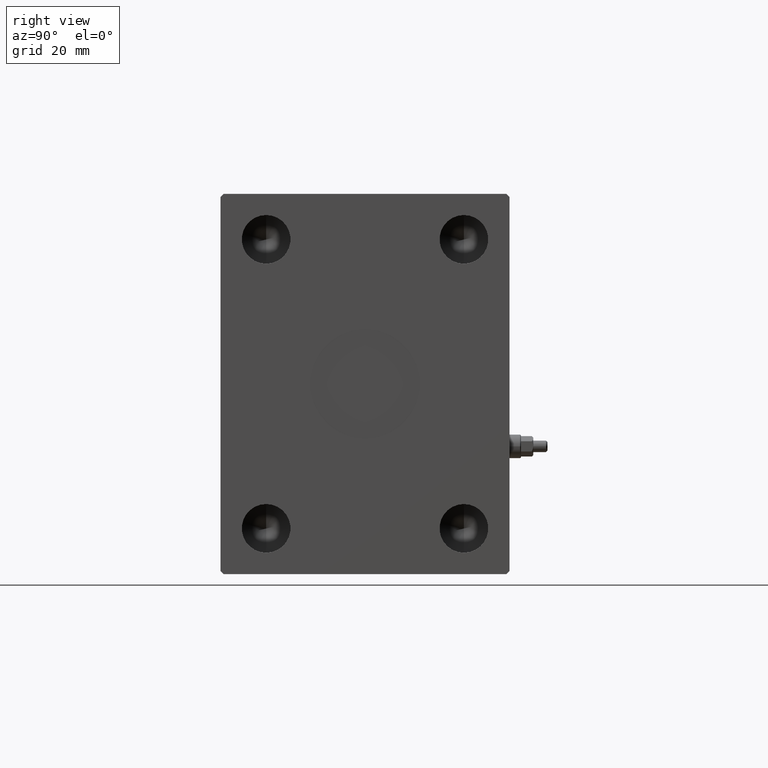
[diagram: clean part render]
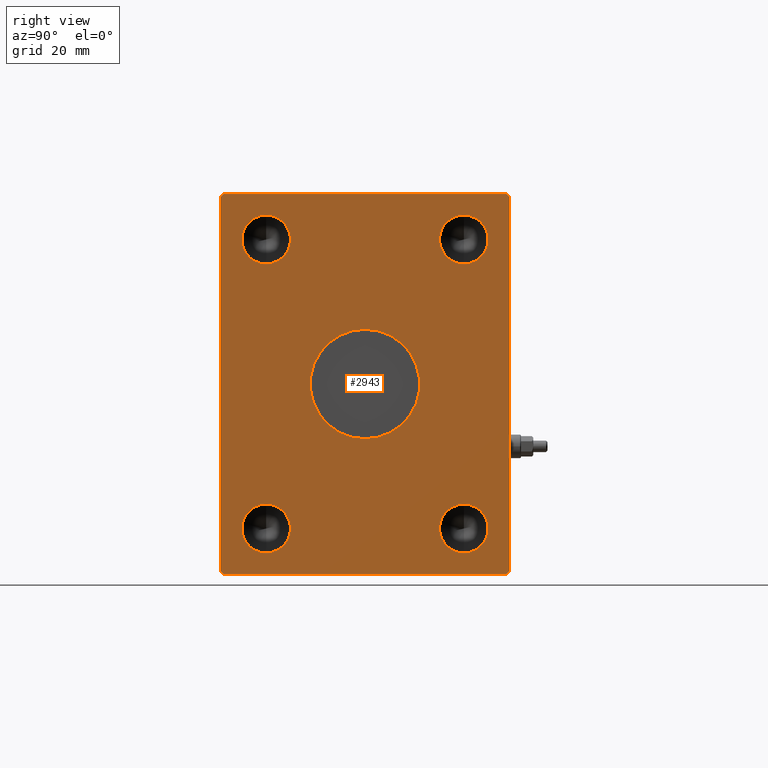
[diagram: same view with one face highlighted and labeled with its STEP entity id]
A machine part, right view. The second image highlights one B-rep face of the part: STEP entity #2943.
In plain terms, the highlighted planar face has unit normal (1, 0, 0).
Its self-contained STEP definition (entity closure, byte-faithful):
#197 = CARTESIAN_POINT ( 'NONE',  ( 161.0000000000000000, 0.000000000000000000, 0.000000000000000000 ) ) ;
#392 = EDGE_CURVE ( 'NONE', #14263, #21944, #33127, .T. ) ;
#692 = CARTESIAN_POINT ( 'NONE',  ( 161.0000000000000000, 32.50000000000000000, 39.50000000000000711 ) ) ;
#1038 = ORIENTED_EDGE ( 'NONE', *, *, #29892, .F. ) ;
#1849 = DIRECTION ( 'NONE',  ( 0.000000000000000000, 0.000000000000000000, -1.000000000000000000 ) ) ;
#2309 = DIRECTION ( 'NONE',  ( 1.000000000000000000, 0.000000000000000000, 0.000000000000000000 ) ) ;
#2709 = VECTOR ( 'NONE', #9856, 1000.000000000000114 ) ;
#2763 = PLANE ( 'NONE',  #12726 ) ;
#2904 = AXIS2_PLACEMENT_3D ( 'NONE', #26496, #44488, #36729 ) ;
#2943 = ADVANCED_FACE ( 'NONE', ( #5489, #29660, #25354, #43550, #4602, #27373 ), #2763, .T. ) ;
#3575 = DIRECTION ( 'NONE',  ( 1.000000000000000000, -0.000000000000000000, -0.000000000000000000 ) ) ;
#4503 = DIRECTION ( 'NONE',  ( 0.000000000000000000, 0.7071067811865574537, 0.7071067811865376918 ) ) ;
#4602 = FACE_BOUND ( 'NONE', #16447, .T. ) ;
#5011 = DIRECTION ( 'NONE',  ( 1.000000000000000000, 0.000000000000000000, 0.000000000000000000 ) ) ;
#5326 = CIRCLE ( 'NONE', #41707, 7.999999999999992895 ) ;
#5489 = FACE_BOUND ( 'NONE', #22123, .T. ) ;
#5665 = EDGE_LOOP ( 'NONE', ( #26472, #37723, #22789, #29842, #9320, #15357, #35908, #31242 ) ) ;
#5687 = VECTOR ( 'NONE', #14054, 1000.000000000000114 ) ;
#6184 = AXIS2_PLACEMENT_3D ( 'NONE', #27138, #20321, #23732 ) ;
#6965 = VERTEX_POINT ( 'NONE', #12879 ) ;
#7085 = CARTESIAN_POINT ( 'NONE',  ( 161.0000000000000000, 32.50000000000000000, -47.50000000000000000 ) ) ;
#7643 = AXIS2_PLACEMENT_3D ( 'NONE', #20097, #40116, #1849 ) ;
#7873 = EDGE_CURVE ( 'NONE', #6965, #41443, #10181, .T. ) ;
#8905 = DIRECTION ( 'NONE',  ( 0.000000000000000000, 1.000000000000000000, 1.492235248152092278E-16 ) ) ;
#9039 = CARTESIAN_POINT ( 'NONE',  ( 161.0000000000000000, 46.50000000000000000, 62.49999999999998579 ) ) ;
#9320 = ORIENTED_EDGE ( 'NONE', *, *, #7873, .T. ) ;
#9561 = ORIENTED_EDGE ( 'NONE', *, *, #392, .F. ) ;
#9629 = LINE ( 'NONE', #13279, #2709 ) ;
#9738 = CARTESIAN_POINT ( 'NONE',  ( 161.0000000000000000, 32.50000000000000000, -47.50000000000000000 ) ) ;
#9757 = VERTEX_POINT ( 'NONE', #34606 ) ;
#9856 = DIRECTION ( 'NONE',  ( 0.000000000000000000, -0.7071067811865474617, -0.7071067811865474617 ) ) ;
#10175 = EDGE_CURVE ( 'NONE', #17966, #16830, #28351, .T. ) ;
#10181 = LINE ( 'NONE', #34133, #5687 ) ;
#10533 = AXIS2_PLACEMENT_3D ( 'NONE', #9738, #3575, #20703 ) ;
#10822 = ORIENTED_EDGE ( 'NONE', *, *, #38703, .F. ) ;
#11182 = DIRECTION ( 'NONE',  ( 0.000000000000000000, 0.000000000000000000, -1.000000000000000000 ) ) ;
#11392 = ORIENTED_EDGE ( 'NONE', *, *, #38143, .F. ) ;
#11628 = CARTESIAN_POINT ( 'NONE',  ( 161.0000000000000000, 0.000000000000000000, 0.000000000000000000 ) ) ;
#12227 = LINE ( 'NONE', #9039, #30774 ) ;
#12288 = AXIS2_PLACEMENT_3D ( 'NONE', #11628, #5011, #11182 ) ;
#12327 = LINE ( 'NONE', #36248, #32979 ) ;
#12726 = AXIS2_PLACEMENT_3D ( 'NONE', #23954, #2309, #23737 ) ;
#12879 = CARTESIAN_POINT ( 'NONE',  ( 161.0000000000000000, -47.49999999999999289, -61.50000000000001421 ) ) ;
#13148 = CARTESIAN_POINT ( 'NONE',  ( 161.0000000000000000, 32.50000000000000000, -55.49999999999999289 ) ) ;
#13279 = CARTESIAN_POINT ( 'NONE',  ( 161.0000000000000000, -46.50000000000001421, 62.49999999999997868 ) ) ;
#13378 = CARTESIAN_POINT ( 'NONE',  ( 161.0000000000000000, 32.50000000000000000, 47.50000000000000000 ) ) ;
#14054 = DIRECTION ( 'NONE',  ( 0.000000000000000000, 0.7071067811865451302, -0.7071067811865500152 ) ) ;
#14058 = CARTESIAN_POINT ( 'NONE',  ( 161.0000000000000000, -46.50000000000001421, 62.49999999999997868 ) ) ;
#14096 = DIRECTION ( 'NONE',  ( 1.000000000000000000, 0.000000000000000000, 0.000000000000000000 ) ) ;
#14251 = ORIENTED_EDGE ( 'NONE', *, *, #10175, .F. ) ;
#14263 = VERTEX_POINT ( 'NONE', #29369 ) ;
#14541 = VERTEX_POINT ( 'NONE', #34798 ) ;
#14995 = LINE ( 'NONE', #42336, #39158 ) ;
#15316 = VERTEX_POINT ( 'NONE', #15874 ) ;
#15357 = ORIENTED_EDGE ( 'NONE', *, *, #29657, .T. ) ;
#15405 = VERTEX_POINT ( 'NONE', #37955 ) ;
#15657 = DIRECTION ( 'NONE',  ( 0.000000000000000000, -1.000000000000000000, -7.461176240760460157E-17 ) ) ;
#15874 = CARTESIAN_POINT ( 'NONE',  ( 161.0000000000000000, 46.50000000000000000, 62.49999999999998579 ) ) ;
#16080 = EDGE_CURVE ( 'NONE', #15316, #20833, #12227, .T. ) ;
#16160 = VERTEX_POINT ( 'NONE', #43679 ) ;
#16447 = EDGE_LOOP ( 'NONE', ( #35105, #9561 ) ) ;
#16830 = VERTEX_POINT ( 'NONE', #33782 ) ;
#16972 = DIRECTION ( 'NONE',  ( 0.000000000000000000, -1.128275431529630729E-16, 1.000000000000000000 ) ) ;
#17585 = DIRECTION ( 'NONE',  ( 0.000000000000000000, 0.000000000000000000, -1.000000000000000000 ) ) ;
#17679 = CARTESIAN_POINT ( 'NONE',  ( 161.0000000000000000, 32.50000000000000000, 55.49999999999999289 ) ) ;
#17687 = ORIENTED_EDGE ( 'NONE', *, *, #26974, .F. ) ;
#17966 = VERTEX_POINT ( 'NONE', #31777 ) ;
#18147 = CARTESIAN_POINT ( 'NONE',  ( 161.0000000000000000, -32.50000000000000000, -39.50000000000000711 ) ) ;
#19050 = VERTEX_POINT ( 'NONE', #36521 ) ;
#19059 = CARTESIAN_POINT ( 'NONE',  ( 161.0000000000000000, -46.50000000000000000, -62.50000000000001421 ) ) ;
#20097 = CARTESIAN_POINT ( 'NONE',  ( 161.0000000000000000, -32.50000000000000000, 47.50000000000000000 ) ) ;
#20321 = DIRECTION ( 'NONE',  ( 1.000000000000000000, -0.000000000000000000, -0.000000000000000000 ) ) ;
#20505 = EDGE_CURVE ( 'NONE', #20833, #19050, #9629, .T. ) ;
#20522 = ORIENTED_EDGE ( 'NONE', *, *, #27043, .F. ) ;
#20659 = LINE ( 'NONE', #24074, #26563 ) ;
#20703 = DIRECTION ( 'NONE',  ( 0.000000000000000000, 0.000000000000000000, -1.000000000000000000 ) ) ;
#20833 = VERTEX_POINT ( 'NONE', #14058 ) ;
#20966 = DIRECTION ( 'NONE',  ( 0.000000000000000000, 0.000000000000000000, -1.000000000000000000 ) ) ;
#21022 = DIRECTION ( 'NONE',  ( 1.000000000000000000, -0.000000000000000000, -0.000000000000000000 ) ) ;
#21855 = DIRECTION ( 'NONE',  ( 0.000000000000000000, -0.7071067811865474617, 0.7071067811865474617 ) ) ;
#21944 = VERTEX_POINT ( 'NONE', #24471 ) ;
#22123 = EDGE_LOOP ( 'NONE', ( #26674, #14251 ) ) ;
#22188 = DIRECTION ( 'NONE',  ( 1.000000000000000000, -0.000000000000000000, -0.000000000000000000 ) ) ;
#22409 = DIRECTION ( 'NONE',  ( 0.000000000000000000, 0.000000000000000000, -1.000000000000000000 ) ) ;
#22694 = EDGE_CURVE ( 'NONE', #16160, #15316, #14995, .T. ) ;
#22789 = ORIENTED_EDGE ( 'NONE', *, *, #20505, .T. ) ;
#22946 = CIRCLE ( 'NONE', #10533, 7.999999999999992895 ) ;
#22996 = VERTEX_POINT ( 'NONE', #18147 ) ;
#23388 = AXIS2_PLACEMENT_3D ( 'NONE', #197, #14096, #20966 ) ;
#23732 = DIRECTION ( 'NONE',  ( 0.000000000000000000, 0.000000000000000000, -1.000000000000000000 ) ) ;
#23737 = DIRECTION ( 'NONE',  ( 0.000000000000000000, 0.000000000000000000, -1.000000000000000000 ) ) ;
#23954 = CARTESIAN_POINT ( 'NONE',  ( 161.0000000000000000, 0.000000000000000000, 0.000000000000000000 ) ) ;
#24074 = CARTESIAN_POINT ( 'NONE',  ( 161.0000000000000000, -47.50000000000001421, 61.49999999999997868 ) ) ;
#24471 = CARTESIAN_POINT ( 'NONE',  ( 161.0000000000000000, -32.50000000000000000, 39.50000000000000711 ) ) ;
#24822 = VERTEX_POINT ( 'NONE', #17679 ) ;
#25354 = FACE_BOUND ( 'NONE', #43738, .T. ) ;
#26472 = ORIENTED_EDGE ( 'NONE', *, *, #22694, .T. ) ;
#26496 = CARTESIAN_POINT ( 'NONE',  ( 161.0000000000000000, -32.50000000000000000, -47.50000000000000711 ) ) ;
#26563 = VECTOR ( 'NONE', #44568, 1000.000000000000000 ) ;
#26658 = EDGE_LOOP ( 'NONE', ( #17687, #1038 ) ) ;
#26674 = ORIENTED_EDGE ( 'NONE', *, *, #44580, .F. ) ;
#26684 = EDGE_CURVE ( 'NONE', #38452, #16160, #37917, .T. ) ;
#26974 = EDGE_CURVE ( 'NONE', #42844, #24822, #37795, .T. ) ;
#27043 = EDGE_CURVE ( 'NONE', #22996, #15405, #35603, .T. ) ;
#27138 = CARTESIAN_POINT ( 'NONE',  ( 161.0000000000000000, -32.50000000000000000, -47.50000000000000711 ) ) ;
#27206 = CIRCLE ( 'NONE', #38837, 7.999999999999992895 ) ;
#27373 = FACE_OUTER_BOUND ( 'NONE', #5665, .T. ) ;
#27616 = AXIS2_PLACEMENT_3D ( 'NONE', #35829, #22188, #22409 ) ;
#28351 = CIRCLE ( 'NONE', #12288, 18.00000000000000000 ) ;
#29369 = CARTESIAN_POINT ( 'NONE',  ( 161.0000000000000000, -32.50000000000000000, 55.49999999999999289 ) ) ;
#29657 = EDGE_CURVE ( 'NONE', #41443, #14541, #12327, .T. ) ;
#29660 = FACE_BOUND ( 'NONE', #26658, .T. ) ;
#29842 = ORIENTED_EDGE ( 'NONE', *, *, #34541, .T. ) ;
#29892 = EDGE_CURVE ( 'NONE', #24822, #42844, #5326, .T. ) ;
#30100 = DIRECTION ( 'NONE',  ( 0.000000000000000000, 0.000000000000000000, -1.000000000000000000 ) ) ;
#30464 = VERTEX_POINT ( 'NONE', #13148 ) ;
#30774 = VECTOR ( 'NONE', #15657, 1000.000000000000000 ) ;
#31154 = DIRECTION ( 'NONE',  ( 0.000000000000000000, 0.000000000000000000, -1.000000000000000000 ) ) ;
#31242 = ORIENTED_EDGE ( 'NONE', *, *, #26684, .T. ) ;
#31777 = CARTESIAN_POINT ( 'NONE',  ( 161.0000000000000000, 2.204364238465235428E-15, 18.00000000000000000 ) ) ;
#32100 = EDGE_CURVE ( 'NONE', #21944, #14263, #27206, .T. ) ;
#32131 = AXIS2_PLACEMENT_3D ( 'NONE', #7085, #21022, #17585 ) ;
#32706 = VECTOR ( 'NONE', #16972, 1000.000000000000000 ) ;
#32979 = VECTOR ( 'NONE', #8905, 1000.000000000000000 ) ;
#33114 = CIRCLE ( 'NONE', #6184, 8.000000000000000000 ) ;
#33127 = CIRCLE ( 'NONE', #7643, 7.999999999999992895 ) ;
#33782 = CARTESIAN_POINT ( 'NONE',  ( 161.0000000000000000, 0.000000000000000000, -18.00000000000000000 ) ) ;
#34133 = CARTESIAN_POINT ( 'NONE',  ( 161.0000000000000000, -47.49999999999999289, -61.50000000000001421 ) ) ;
#34541 = EDGE_CURVE ( 'NONE', #19050, #6965, #20659, .T. ) ;
#34561 = DIRECTION ( 'NONE',  ( 1.000000000000000000, -0.000000000000000000, -0.000000000000000000 ) ) ;
#34606 = CARTESIAN_POINT ( 'NONE',  ( 161.0000000000000000, 32.50000000000000000, -39.50000000000000711 ) ) ;
#34798 = CARTESIAN_POINT ( 'NONE',  ( 161.0000000000000000, 46.50000000000000000, -62.50000000000000000 ) ) ;
#35105 = ORIENTED_EDGE ( 'NONE', *, *, #32100, .F. ) ;
#35490 = CARTESIAN_POINT ( 'NONE',  ( 161.0000000000000000, 46.50000000000000000, -62.50000000000000000 ) ) ;
#35603 = CIRCLE ( 'NONE', #2904, 8.000000000000000000 ) ;
#35829 = CARTESIAN_POINT ( 'NONE',  ( 161.0000000000000000, 32.50000000000000000, 47.50000000000000000 ) ) ;
#35908 = ORIENTED_EDGE ( 'NONE', *, *, #43921, .T. ) ;
#36248 = CARTESIAN_POINT ( 'NONE',  ( 161.0000000000000000, -46.50000000000000000, -62.50000000000001421 ) ) ;
#36482 = ORIENTED_EDGE ( 'NONE', *, *, #44342, .F. ) ;
#36521 = CARTESIAN_POINT ( 'NONE',  ( 161.0000000000000000, -47.50000000000001421, 61.49999999999997868 ) ) ;
#36729 = DIRECTION ( 'NONE',  ( 0.000000000000000000, 0.000000000000000000, -1.000000000000000000 ) ) ;
#37723 = ORIENTED_EDGE ( 'NONE', *, *, #16080, .T. ) ;
#37795 = CIRCLE ( 'NONE', #27616, 7.999999999999992895 ) ;
#37917 = LINE ( 'NONE', #41340, #32706 ) ;
#37955 = CARTESIAN_POINT ( 'NONE',  ( 161.0000000000000000, -32.50000000000000000, -55.50000000000000711 ) ) ;
#38143 = EDGE_CURVE ( 'NONE', #15405, #22996, #33114, .T. ) ;
#38348 = VECTOR ( 'NONE', #4503, 999.9999999999998863 ) ;
#38452 = VERTEX_POINT ( 'NONE', #38640 ) ;
#38640 = CARTESIAN_POINT ( 'NONE',  ( 161.0000000000000000, 47.50000000000001421, -61.50000000000001421 ) ) ;
#38703 = EDGE_CURVE ( 'NONE', #30464, #9757, #22946, .T. ) ;
#38837 = AXIS2_PLACEMENT_3D ( 'NONE', #40110, #44216, #30100 ) ;
#39140 = LINE ( 'NONE', #35490, #38348 ) ;
#39158 = VECTOR ( 'NONE', #21855, 1000.000000000000114 ) ;
#40110 = CARTESIAN_POINT ( 'NONE',  ( 161.0000000000000000, -32.50000000000000000, 47.50000000000000000 ) ) ;
#40116 = DIRECTION ( 'NONE',  ( 1.000000000000000000, -0.000000000000000000, -0.000000000000000000 ) ) ;
#40775 = EDGE_LOOP ( 'NONE', ( #10822, #36482 ) ) ;
#41340 = CARTESIAN_POINT ( 'NONE',  ( 161.0000000000000000, 47.50000000000001421, -61.50000000000001421 ) ) ;
#41443 = VERTEX_POINT ( 'NONE', #19059 ) ;
#41588 = CIRCLE ( 'NONE', #23388, 18.00000000000000000 ) ;
#41707 = AXIS2_PLACEMENT_3D ( 'NONE', #13378, #34561, #31154 ) ;
#42304 = CIRCLE ( 'NONE', #32131, 7.999999999999992895 ) ;
#42336 = CARTESIAN_POINT ( 'NONE',  ( 161.0000000000000000, 47.50000000000000000, 61.49999999999998579 ) ) ;
#42844 = VERTEX_POINT ( 'NONE', #692 ) ;
#43550 = FACE_BOUND ( 'NONE', #40775, .T. ) ;
#43679 = CARTESIAN_POINT ( 'NONE',  ( 161.0000000000000000, 47.50000000000000000, 61.49999999999998579 ) ) ;
#43738 = EDGE_LOOP ( 'NONE', ( #11392, #20522 ) ) ;
#43921 = EDGE_CURVE ( 'NONE', #14541, #38452, #39140, .T. ) ;
#44216 = DIRECTION ( 'NONE',  ( 1.000000000000000000, -0.000000000000000000, -0.000000000000000000 ) ) ;
#44342 = EDGE_CURVE ( 'NONE', #9757, #30464, #42304, .T. ) ;
#44488 = DIRECTION ( 'NONE',  ( 1.000000000000000000, -0.000000000000000000, -0.000000000000000000 ) ) ;
#44568 = DIRECTION ( 'NONE',  ( 0.000000000000000000, 1.692413147294445970E-16, -1.000000000000000000 ) ) ;
#44580 = EDGE_CURVE ( 'NONE', #16830, #17966, #41588, .T. ) ;